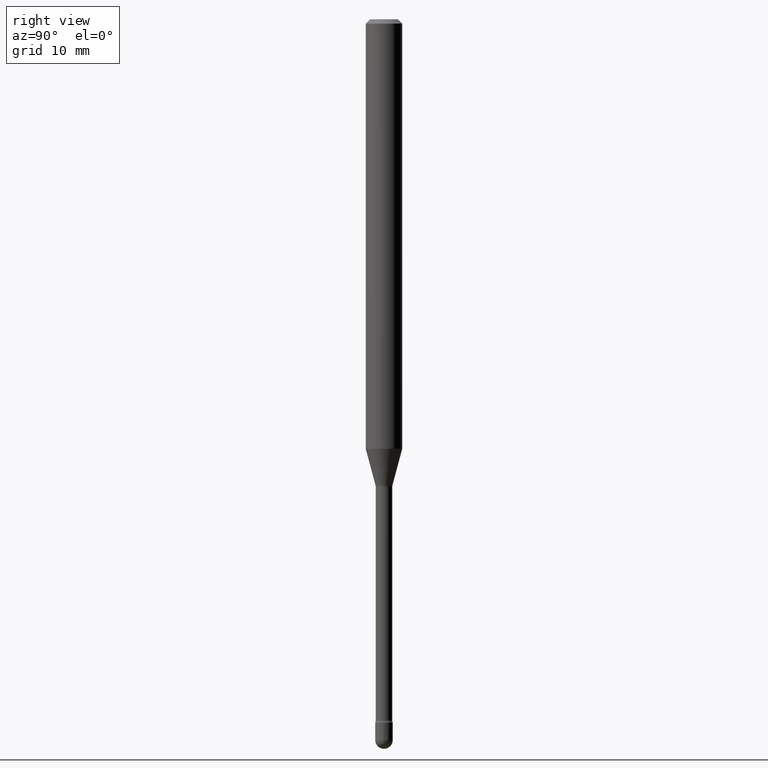
[diagram: clean part render]
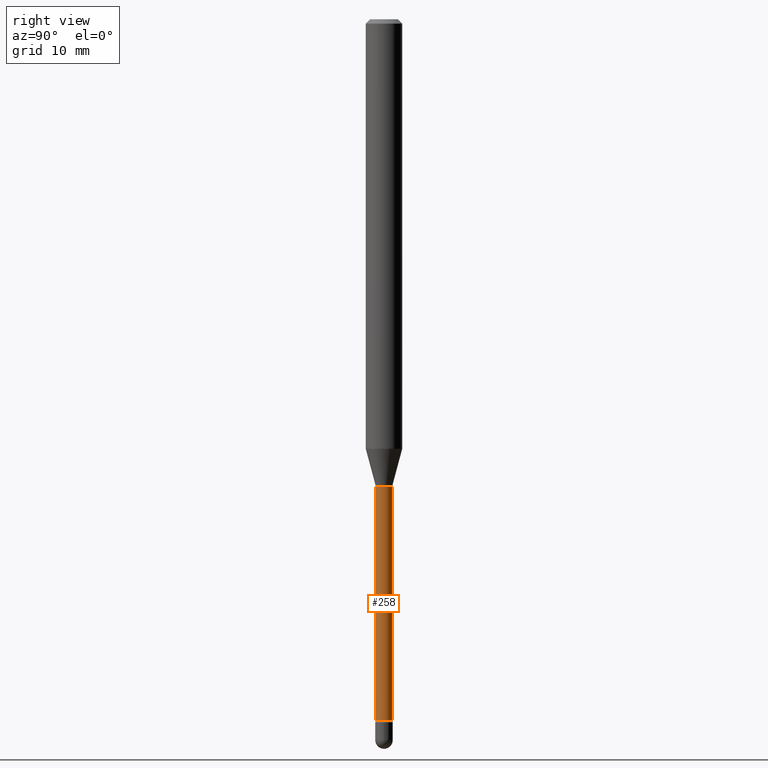
[diagram: same view with one face highlighted and labeled with its STEP entity id]
A machine part, right view. The second image highlights one B-rep face of the part: STEP entity #258.
In plain terms, the highlighted cylindrical surface (edge-blend (fillet) strip) has radius 0.7163 mm, axis along (-0, 0, 1).
Its self-contained STEP definition (entity closure, byte-faithful):
#2 = DIRECTION ( 'NONE',  ( -6.982962677686265922E-15, -1.000000000000000000, 3.491424740603152967E-15 ) ) ;
#28 = AXIS2_PLACEMENT_3D ( 'NONE', #196, #365, #537 ) ;
#51 = EDGE_CURVE ( 'NONE', #555, #548, #511, .T. ) ;
#55 = DIRECTION ( 'NONE',  ( -2.445508328524885386E-29, 3.491424740603154151E-15, 1.000000000000000000 ) ) ;
#105 = CIRCLE ( 'NONE', #28, 0.02820000000000011386 ) ;
#112 = EDGE_CURVE ( 'NONE', #555, #264, #105, .T. ) ;
#160 = AXIS2_PLACEMENT_3D ( 'NONE', #164, #305, #206 ) ;
#164 = CARTESIAN_POINT ( 'NONE',  ( 3.917642684829632666E-29, -5.593174406773630015E-15, -1.601974787463811278 ) ) ;
#194 = CARTESIAN_POINT ( 'NONE',  ( -1.969195475107530967E-16, -0.02820000000000005835, 5.765315765762551553E-16 ) ) ;
#196 = CARTESIAN_POINT ( 'NONE',  ( 5.876251790263210729E-29, -8.389458601808959728E-15, -2.402875394747777449 ) ) ;
#204 = LINE ( 'NONE', #302, #295 ) ;
#206 = DIRECTION ( 'NONE',  ( -6.982962677686265133E-15, -1.000000000000000000, 0.000000000000000000 ) ) ;
#218 = AXIS2_PLACEMENT_3D ( 'NONE', #312, #525, #2 ) ;
#252 = ORIENTED_EDGE ( 'NONE', *, *, #287, .T. ) ;
#258 = ADVANCED_FACE ( 'NONE', ( #310 ), #349, .T. ) ;
#264 = VERTEX_POINT ( 'NONE', #566 ) ;
#287 = EDGE_CURVE ( 'NONE', #264, #424, #204, .T. ) ;
#295 = VECTOR ( 'NONE', #358, 39.37007874015748143 ) ;
#302 = CARTESIAN_POINT ( 'NONE',  ( 2.003730514843486177E-16, 0.02820000000000005835, 3.796152212062369219E-16 ) ) ;
#303 = CIRCLE ( 'NONE', #160, 0.02820000000000000284 ) ;
#305 = DIRECTION ( 'NONE',  ( -2.445508328524885105E-29, 3.491424740603154151E-15, 1.000000000000000000 ) ) ;
#309 = EDGE_LOOP ( 'NONE', ( #498, #252, #557, #432 ) ) ;
#310 = FACE_OUTER_BOUND ( 'NONE', #309, .T. ) ;
#312 = CARTESIAN_POINT ( 'NONE',  ( -1.169113584055446105E-44, 1.669184350826100908E-30, 4.780733988912460139E-16 ) ) ;
#340 = CARTESIAN_POINT ( 'NONE',  ( -1.969195475107135058E-16, -0.02820000000000559212, -1.601974787463811278 ) ) ;
#349 = CYLINDRICAL_SURFACE ( 'NONE', #218, 0.02820000000000005835 ) ;
#358 = DIRECTION ( 'NONE',  ( -2.445508328524885386E-29, 3.491424740603154151E-15, 1.000000000000000000 ) ) ;
#365 = DIRECTION ( 'NONE',  ( -2.445508328524885105E-29, 3.491424740603154151E-15, 1.000000000000000000 ) ) ;
#385 = EDGE_CURVE ( 'NONE', #548, #424, #303, .T. ) ;
#406 = VECTOR ( 'NONE', #55, 39.37007874015748143 ) ;
#424 = VERTEX_POINT ( 'NONE', #447 ) ;
#432 = ORIENTED_EDGE ( 'NONE', *, *, #51, .F. ) ;
#447 = CARTESIAN_POINT ( 'NONE',  ( 2.003730514844073386E-16, 0.02819999999999441009, -1.601974787463811278 ) ) ;
#464 = CARTESIAN_POINT ( 'NONE',  ( -1.969195475106947457E-16, -0.02820000000000849952, -2.402875394747777449 ) ) ;
#498 = ORIENTED_EDGE ( 'NONE', *, *, #112, .T. ) ;
#511 = LINE ( 'NONE', #194, #406 ) ;
#525 = DIRECTION ( 'NONE',  ( -2.445508328524885105E-29, 3.491424740603154151E-15, 1.000000000000000000 ) ) ;
#537 = DIRECTION ( 'NONE',  ( -6.982962677686265922E-15, -1.000000000000000000, 0.000000000000000000 ) ) ;
#548 = VERTEX_POINT ( 'NONE', #340 ) ;
#555 = VERTEX_POINT ( 'NONE', #464 ) ;
#557 = ORIENTED_EDGE ( 'NONE', *, *, #385, .F. ) ;
#566 = CARTESIAN_POINT ( 'NONE',  ( 2.067679361062483002E-16, 0.02819999999999172474, -2.402875394747777449 ) ) ;